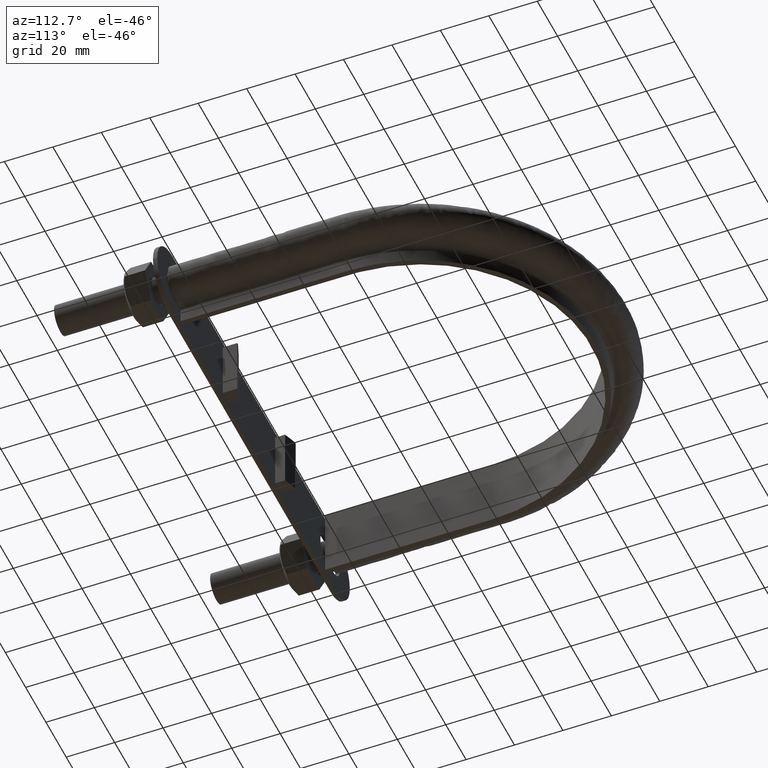
[diagram: clean part render]
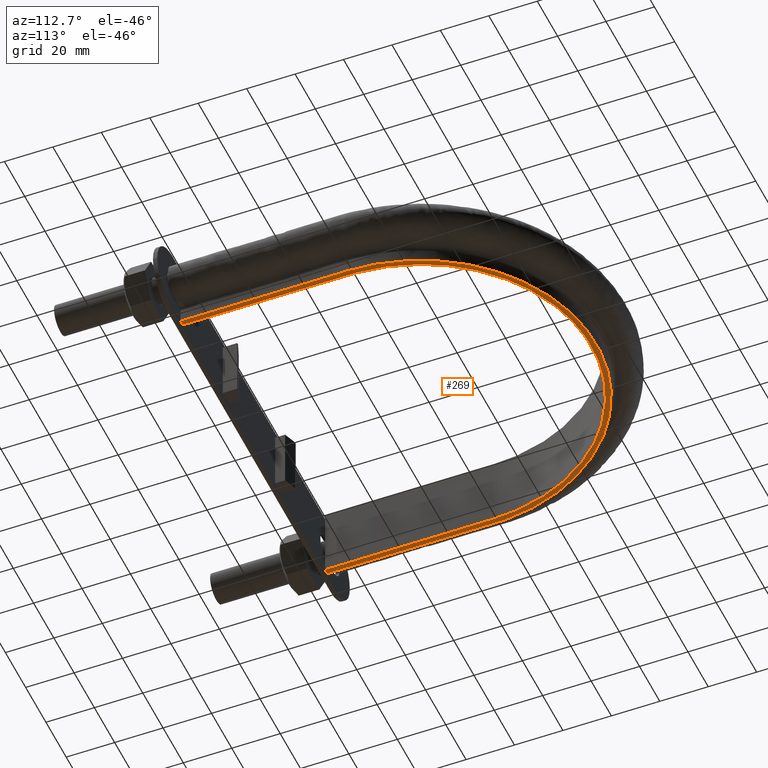
[diagram: same view with one face highlighted and labeled with its STEP entity id]
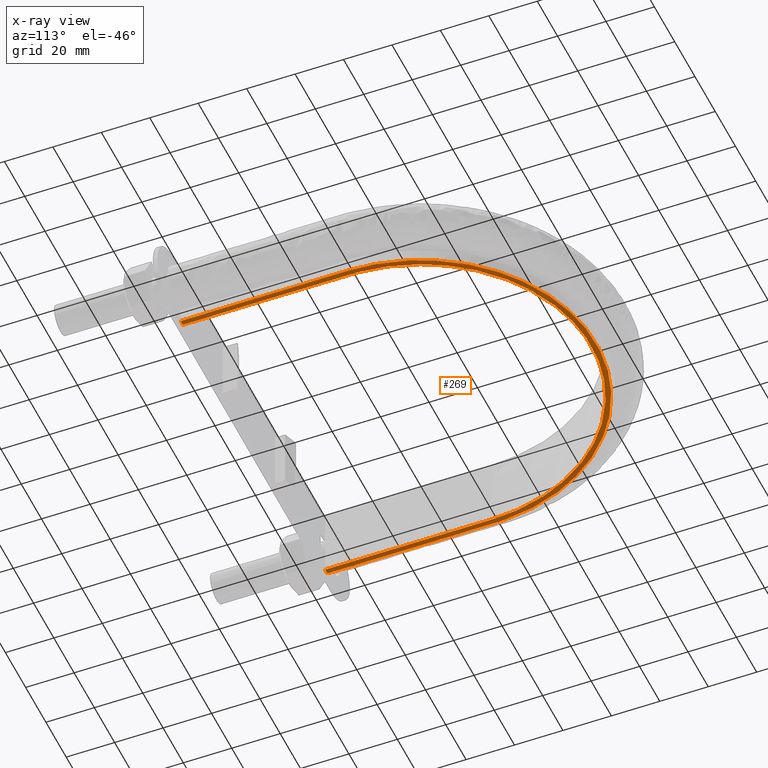
[diagram: x-ray of the same camera — body ghosted, the highlighted face saturated]
A machine part, auxiliary view. The second image highlights one B-rep face of the part: STEP entity #269.
The next image is the same camera in x-ray: the body ghosted, the highlighted face saturated — about 0% of this face is hidden behind the body in this view.
In plain terms, the highlighted planar face has unit normal (0, 0, 1).
Its self-contained STEP definition (entity closure, byte-faithful):
#269 = ADVANCED_FACE( '', ( #350 ), #351, .F. );
#350 = FACE_OUTER_BOUND( '', #538, .T. );
#351 = PLANE( '', #539 );
#538 = EDGE_LOOP( '', ( #1594, #1595, #1596, #1597 ) );
#539 = AXIS2_PLACEMENT_3D( '', #1598, #1599, #1600 );
#1594 = ORIENTED_EDGE( '', *, *, #2147, .F. );
#1595 = ORIENTED_EDGE( '', *, *, #2144, .F. );
#1596 = ORIENTED_EDGE( '', *, *, #2149, .F. );
#1597 = ORIENTED_EDGE( '', *, *, #2150, .F. );
#1598 = CARTESIAN_POINT( '', ( 100.000000000000, 247.710000000000, -15.0000000000000 ) );
#1599 = DIRECTION( '', ( 0.000000000000000, 0.000000000000000, 1.00000000000000 ) );
#1600 = DIRECTION( '', ( 1.00000000000000, 0.000000000000000, 0.000000000000000 ) );
#2144 = EDGE_CURVE( '', #2316, #2311, #2318, .T. );
#2147 = EDGE_CURVE( '', #2311, #2323, #2324, .T. );
#2149 = EDGE_CURVE( '', #2326, #2316, #2327, .T. );
#2150 = EDGE_CURVE( '', #2323, #2326, #2328, .T. );
#2311 = VERTEX_POINT( '', #2607 );
#2316 = VERTEX_POINT( '', #2614 );
#2318 = LINE( '', #2646, #2647 );
#2323 = VERTEX_POINT( '', #2677 );
#2324 = B_SPLINE_CURVE_WITH_KNOTS( '', 3, ( #2678, #2679, #2680, #2681, #2682, #2683, #2684, #2685, #2686, #2687, #2688, #2689, #2690, #2691, #2692, #2693 ), .UNSPECIFIED., .F., .F., ( 4, 3, 1, 1, 1, 1, 1, 1, 3, 4 ), ( -9.00000000000000, -8.00000000000000, -7.00000000000000, -6.00000000000000, -5.00000000000000, -4.00000000000000, -3.00000000000000, -2.00000000000000, -1.00000000000000, 0.000000000000000 ), .UNSPECIFIED. );
#2326 = VERTEX_POINT( '', #2696 );
#2327 = B_SPLINE_CURVE_WITH_KNOTS( '', 3, ( #2697, #2698, #2699, #2700, #2701, #2702, #2703, #2704, #2705, #2706, #2707, #2708, #2709, #2710, #2711, #2712 ), .UNSPECIFIED., .F., .F., ( 4, 3, 1, 1, 1, 1, 1, 1, 3, 4 ), ( 0.000000000000000, 1.00000000000000, 2.00000000000000, 3.00000000000000, 4.00000000000000, 5.00000000000000, 6.00000000000000, 7.00000000000000, 8.00000000000000, 9.00000000000000 ), .UNSPECIFIED. );
#2328 = LINE( '', #2713, #2714 );
#2607 = CARTESIAN_POINT( '', ( -70.2500000000000, 47.7100000000000, -15.0000000000000 ) );
#2614 = CARTESIAN_POINT( '', ( -72.4500000000000, 47.7100000000000, -15.0000000000000 ) );
#2646 = CARTESIAN_POINT( '', ( -100.000000000000, 47.7100000000000, -15.0000000000000 ) );
#2647 = VECTOR( '', #3327, 1000.00000000000 );
#2677 = CARTESIAN_POINT( '', ( 70.2500000000000, 47.7100000000000, -15.0000000000000 ) );
#2678 = CARTESIAN_POINT( '', ( -70.2500000000000, 47.7100000000000, -15.0000000000000 ) );
#2679 = CARTESIAN_POINT( '', ( -70.2500000000000, 70.7266666666667, -15.0000000000000 ) );
#2680 = CARTESIAN_POINT( '', ( -70.2500000000000, 93.7433333333333, -15.0000000000000 ) );
#2681 = CARTESIAN_POINT( '', ( -70.2500000000000, 116.760000000000, -15.0000000000000 ) );
#2682 = CARTESIAN_POINT( '', ( -70.2500000000000, 127.249418134732, -15.0000000000000 ) );
#2683 = CARTESIAN_POINT( '', ( -65.4537147955432, 148.288971927909, -15.0000000000000 ) );
#2684 = CARTESIAN_POINT( '', ( -45.2953760364684, 173.556467088273, -15.0000000000000 ) );
#2685 = CARTESIAN_POINT( '', ( -16.1657325420394, 187.587129579273, -15.0000000000000 ) );
#2686 = CARTESIAN_POINT( '', ( 16.1657325420395, 187.587129579273, -15.0000000000000 ) );
#2687 = CARTESIAN_POINT( '', ( 45.2953760364684, 173.556467088273, -15.0000000000000 ) );
#2688 = CARTESIAN_POINT( '', ( 65.4537147955432, 148.288971927909, -15.0000000000000 ) );
#2689 = CARTESIAN_POINT( '', ( 70.2500000000000, 127.249418134732, -15.0000000000000 ) );
#2690 = CARTESIAN_POINT( '', ( 70.2500000000000, 116.760000000000, -15.0000000000000 ) );
#2691 = CARTESIAN_POINT( '', ( 70.2500000000000, 93.7433333333333, -15.0000000000000 ) );
#2692 = CARTESIAN_POINT( '', ( 70.2500000000000, 70.7266666666667, -15.0000000000000 ) );
#2693 = CARTESIAN_POINT( '', ( 70.2500000000000, 47.7100000000000, -15.0000000000000 ) );
#2696 = CARTESIAN_POINT( '', ( 72.4500000000000, 47.7100000000000, -15.0000000000000 ) );
#2697 = CARTESIAN_POINT( '', ( 72.4500000000000, 47.7100000000000, -15.0000000000000 ) );
#2698 = CARTESIAN_POINT( '', ( 72.4500000000000, 70.7266666666666, -15.0000000000000 ) );
#2699 = CARTESIAN_POINT( '', ( 72.4500000000000, 93.7433333333333, -15.0000000000000 ) );
#2700 = CARTESIAN_POINT( '', ( 72.4500000000000, 116.760000000000, -15.0000000000000 ) );
#2701 = CARTESIAN_POINT( '', ( 72.4500000000000, 127.584175230504, -15.0000000000000 ) );
#2702 = CARTESIAN_POINT( '', ( 67.5035108460798, 149.273453800089, -15.0000000000000 ) );
#2703 = CARTESIAN_POINT( '', ( 46.7138789159023, 175.335910248336, -15.0000000000000 ) );
#2704 = CARTESIAN_POINT( '', ( 16.6719903583027, 189.805050635421, -15.0000000000000 ) );
#2705 = CARTESIAN_POINT( '', ( -16.6719903583025, 189.805050635421, -15.0000000000000 ) );
#2706 = CARTESIAN_POINT( '', ( -46.7138789159022, 175.335910248336, -15.0000000000000 ) );
#2707 = CARTESIAN_POINT( '', ( -67.5035108460798, 149.273453800089, -15.0000000000000 ) );
#2708 = CARTESIAN_POINT( '', ( -72.4500000000000, 127.584175230504, -15.0000000000000 ) );
#2709 = CARTESIAN_POINT( '', ( -72.4500000000000, 116.760000000000, -15.0000000000000 ) );
#2710 = CARTESIAN_POINT( '', ( -72.4500000000000, 93.7433333333334, -15.0000000000000 ) );
#2711 = CARTESIAN_POINT( '', ( -72.4500000000000, 70.7266666666667, -15.0000000000000 ) );
#2712 = CARTESIAN_POINT( '', ( -72.4500000000000, 47.7100000000000, -15.0000000000000 ) );
#2713 = CARTESIAN_POINT( '', ( -100.000000000000, 47.7100000000000, -15.0000000000000 ) );
#2714 = VECTOR( '', #3329, 1000.00000000000 );
#3327 = DIRECTION( '', ( 1.00000000000000, -1.22460635382238E-016, 0.000000000000000 ) );
#3329 = DIRECTION( '', ( 1.00000000000000, -1.22460635382238E-016, 0.000000000000000 ) );